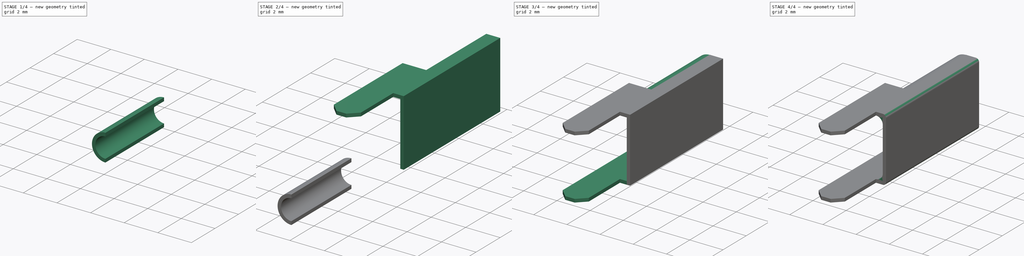
[diagram: build sequence overview — one tinted view per stage of 4, left to right]
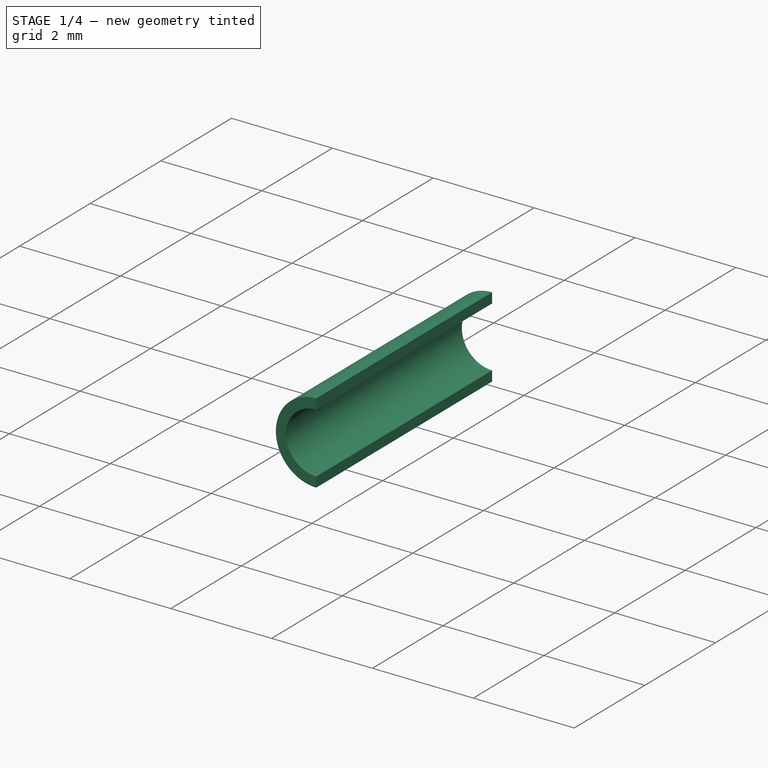
[diagram: stage 1 of 4 — iso view after this stage's code; geometry added in this stage tinted green]
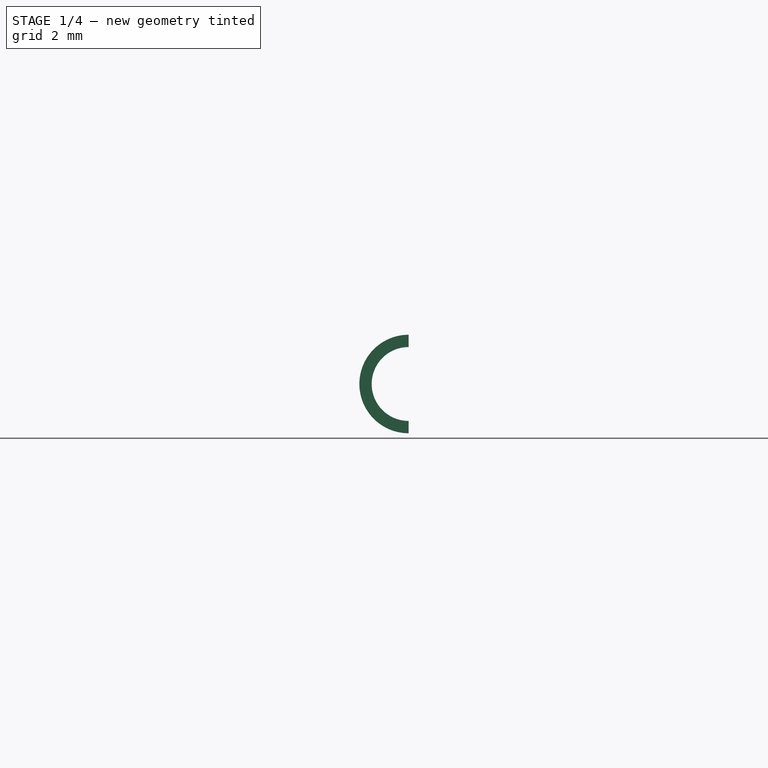
[diagram: stage 1 of 4 — front view after this stage's code; geometry added in this stage tinted green]
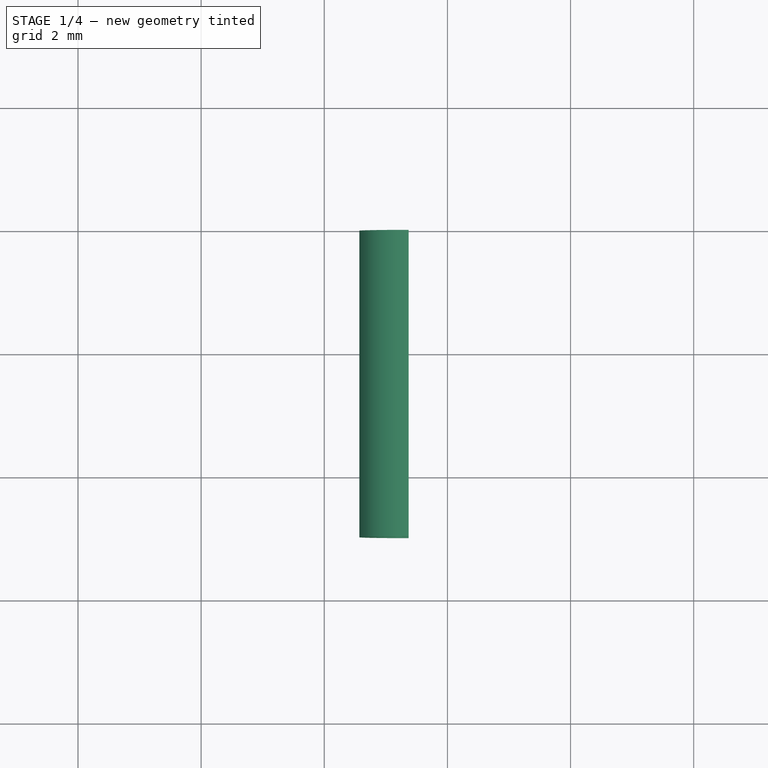
[diagram: stage 1 of 4 — top view after this stage's code; geometry added in this stage tinted green]
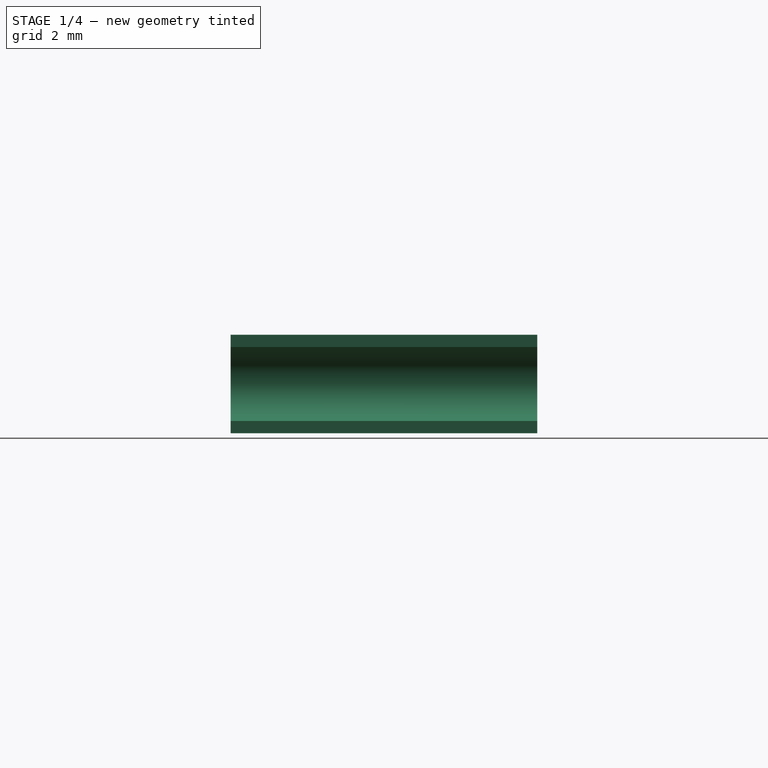
[diagram: stage 1 of 4 — right view after this stage's code; geometry added in this stage tinted green]
FCSTD DOCUMENT  (FreeCAD 0.17R12831 (Git))
Label: Spade
License: All rights reserved
LicenseURL: http://en.wikipedia.org/wiki/All_rights_reserved
objects: Sketcher::SketchObject×5, PartDesign::Pad×5, PartDesign::Body×4, PartDesign::Chamfer×2, PartDesign::Fillet×2, PartDesign::Boolean×1
note: 24 computed .brp shape members not serialized (recipe doc carries the construction recipe); baked Part::Feature solids carry a one-line shape summary decoded from their .brp

FEATURE [PartDesign::Body] Body001
  Group = -> [Sketch001,Pad001,Chamfer001,Sketch002,Pad002]
  Origin = -> Origin001
  Tip = -> Pad002
FEATURE [Sketcher::SketchObject] Sketch003
  MapMode = 5
  Placement = pos=(0,0,0) rot=(1,0,0;1.5708rad)
  Support = -> [XZ_Plane002]
  sketch-geometry (4):
    g0: LineSegment StartX=1.37 StartY=0.2 StartZ=0 EndX=1.37 EndY=0 EndZ=0
    g1: ArcOfCircle CenterX=1.37 CenterY=0.8 CenterZ=0 NormalX=0 NormalY=0 NormalZ=1 AngleXU=0 Radius=0.6 StartAngle=1.5708 EndAngle=4.71239
    g2: ArcOfCircle CenterX=1.37 CenterY=0.8 CenterZ=0 NormalX=0 NormalY=0 NormalZ=1 AngleXU=0 Radius=0.8 StartAngle=1.5708 EndAngle=4.71239
    g3: LineSegment StartX=1.37 StartY=1.6 StartZ=0 EndX=1.37 EndY=1.4 EndZ=0
  constraints (13):
    c: PointOnObject(g0,g-1)
    c: Vertical(g0)
    c: DistanceY(g0,g0) = 0.2
    c: Coincident(g1,g0)
    c: Coincident(g2,g1)
    c: Coincident(g2,g0)
    c: Coincident(g3,g2)
    c: Coincident(g3,g1)
    c: PointOnObject(g1,g3)
    c: PointOnObject(g0,g3)
    c: PointOnObject(g1,g0)
    c: DistanceX(g-1,g0) = 1.37
    c: Radius(g1) = 0.6
FEATURE [PartDesign::Pad] Pad003
  Length = 4.98
  Length2 = 100
  Placement = pos=(0,0,0) rot=(1,0,0;1.5708rad)
  Profile = -> Sketch003
  Type = 0
FEATURE [PartDesign::Body] Body002
  Group = -> [Sketch003,Pad003]
  Origin = -> Origin002
  Placement = pos=(0,11.18,0) rot=(0,0,1;0rad)
  Tip = -> Pad003
FEATURE [Sketcher::SketchObject] Sketch004
  MapMode = 5
  Placement = pos=(0,0,0) rot=(1,0,0;1.5708rad)
  Support = -> [XZ_Plane003]
  sketch-geometry (4):
    g0: LineSegment StartX=1.37 StartY=0.2 StartZ=0 EndX=1.37 EndY=0 EndZ=0
    g1: ArcOfCircle CenterX=1.37 CenterY=0.8 CenterZ=0 NormalX=0 NormalY=0 NormalZ=1 AngleXU=0 Radius=0.6 StartAngle=1.5708 EndAngle=4.71239
    g2: ArcOfCircle CenterX=1.37 CenterY=0.8 CenterZ=0 NormalX=0 NormalY=0 NormalZ=1 AngleXU=0 Radius=0.8 StartAngle=1.5708 EndAngle=4.71239
    g3: LineSegment StartX=1.37 StartY=1.6 StartZ=0 EndX=1.37 EndY=1.4 EndZ=0
  constraints (13):
    c: PointOnObject(g0,g-1)
    c: Vertical(g0)
    c: DistanceY(g0,g0) = 0.2
    c: Coincident(g1,g0)
    c: Coincident(g2,g1)
    c: Coincident(g2,g0)
    c: Coincident(g3,g2)
    c: Coincident(g3,g1)
    c: PointOnObject(g1,g3)
    c: PointOnObject(g0,g3)
    c: PointOnObject(g1,g0)
    c: DistanceX(g-1,g0) = 1.37
    c: Radius(g1) = 0.6
FEATURE [PartDesign::Pad] Pad004
  Length = 4.98
  Length2 = 100
  Placement = pos=(0,0,0) rot=(1,0,0;1.5708rad)
  Profile = -> Sketch004
  Type = 0
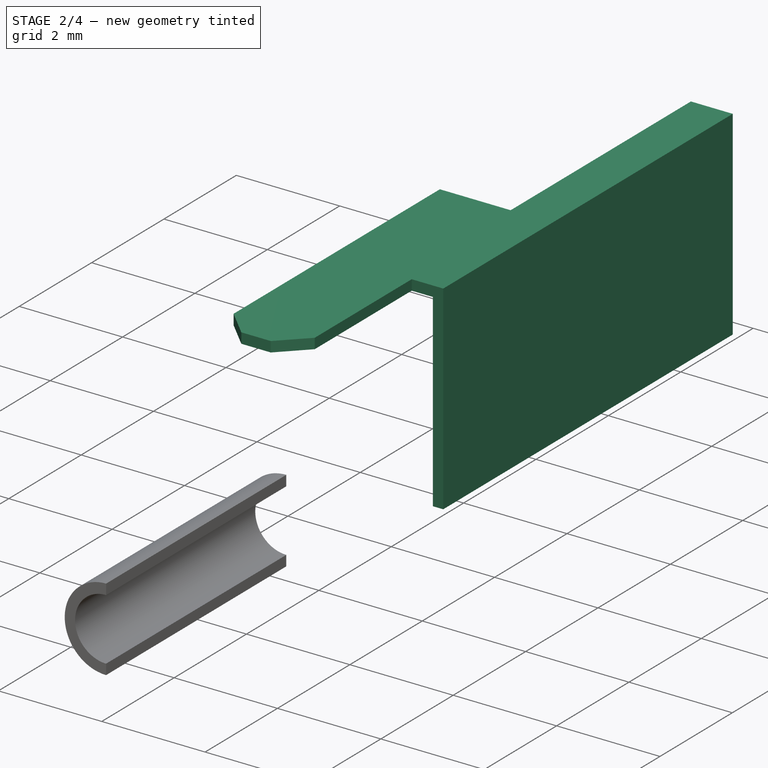
[diagram: stage 2 of 4 — iso view after this stage's code; geometry added in this stage tinted green]
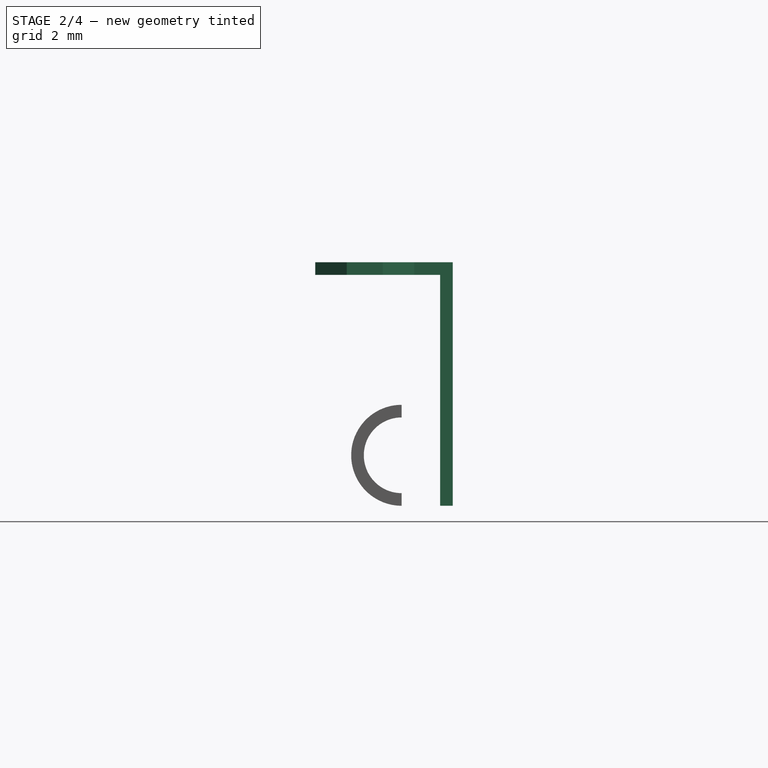
[diagram: stage 2 of 4 — front view after this stage's code; geometry added in this stage tinted green]
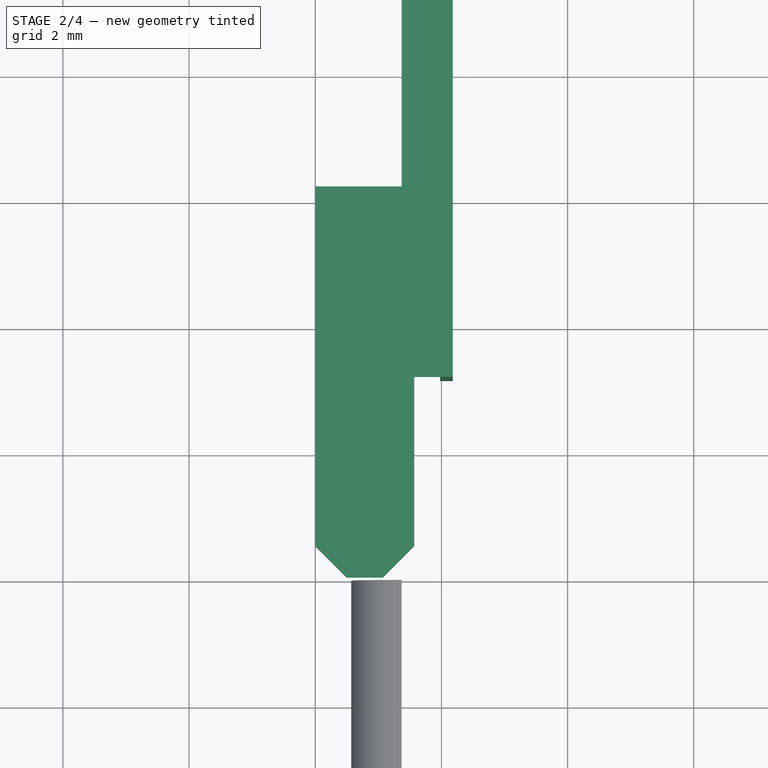
[diagram: stage 2 of 4 — top view after this stage's code; geometry added in this stage tinted green]
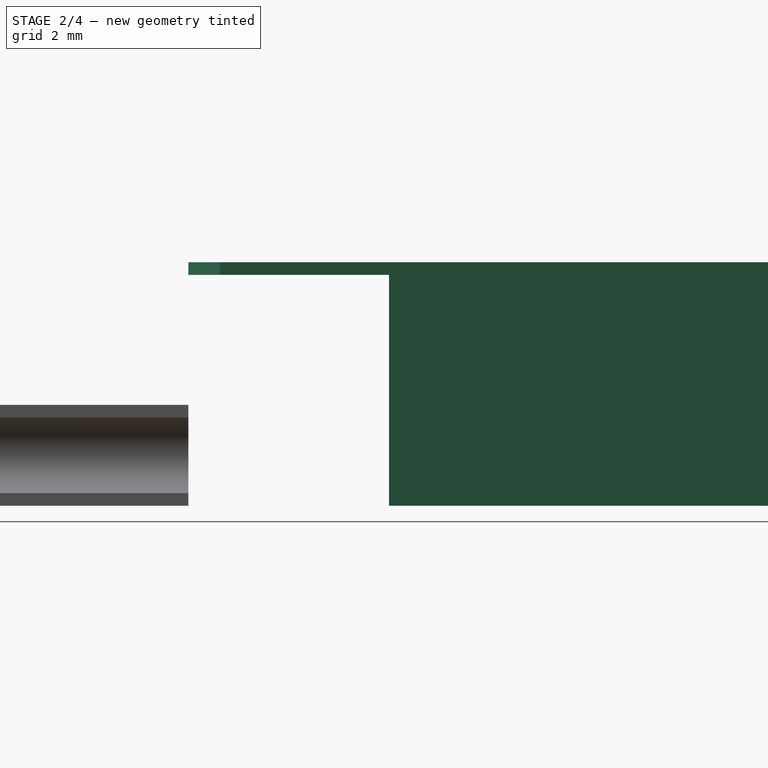
[diagram: stage 2 of 4 — right view after this stage's code; geometry added in this stage tinted green]
FEATURE [Sketcher::SketchObject] Sketch001
  AttachmentOffset = pos=(0,0,3.66) rot=(0,0,1;0rad)
  MapMode = 5
  Placement = pos=(0,0,3.66) rot=(0,0,1;0rad)
  Support = -> [XY_Plane001]
  sketch-geometry (8):
    g0: LineSegment StartX=0 StartY=0 StartZ=0 EndX=1.57 EndY=0 EndZ=0
    g1: LineSegment StartX=0 StartY=0 StartZ=0 EndX=0 EndY=6.2 EndZ=0
    g2: LineSegment StartX=0 StartY=6.2 StartZ=0 EndX=1.37 EndY=6.2 EndZ=0
    g3: LineSegment StartX=1.57 StartY=0 StartZ=0 EndX=1.57 EndY=3.18 EndZ=0
    g4: LineSegment StartX=1.57 StartY=3.18 StartZ=0 EndX=2.18 EndY=3.18 EndZ=0
    g5: LineSegment StartX=2.18 StartY=3.18 StartZ=0 EndX=2.18 EndY=11.18 EndZ=0
    g6: LineSegment StartX=2.18 StartY=11.18 StartZ=0 EndX=1.37 EndY=11.18 EndZ=0
    g7: LineSegment StartX=1.37 StartY=11.18 StartZ=0 EndX=1.37 EndY=6.2 EndZ=0
  constraints (23):
    c: Horizontal(g0)
    c: Coincident(g1,g0)
    c: Vertical(g1)
    c: Coincident(g2,g1)
    c: Horizontal(g2)
    c: Coincident(g3,g0)
    c: Vertical(g3)
    c: Coincident(g4,g3)
    c: Horizontal(g4)
    c: Coincident(g5,g4)
    c: Vertical(g5)
    c: Coincident(g6,g5)
    c: Horizontal(g6)
    c: Coincident(g7,g6)
    c: Coincident(g7,g2)
    c: Vertical(g7)
    c: DistanceX(g0,g0) = 1.57
    c: DistanceX(g0,g4) = 2.18
    c: DistanceX(g6,g6) = 0.81
    c: DistanceY(g0,g6) = 11.18
    c: DistanceY(g3,g3) = 3.18
    c: DistanceY(g7,g7) = 4.98
    c: Coincident(g0,g-1)
FEATURE [PartDesign::Pad] Pad001
  Length = 0.2
  Length2 = 100
  Profile = -> Sketch001
  Type = 0
FEATURE [PartDesign::Chamfer] Chamfer001
  Base = -> Pad001 [Edge2,Edge1]
  BaseFeature = -> Pad001
  Size = 0.5
FEATURE [Sketcher::SketchObject] Sketch002
  MapMode = 5
  Placement = pos=(2.18,0,0) rot=(0.57735,0.57735,0.57735;2.0944rad)
  Support = -> [Chamfer001]
  sketch-geometry (4):
    g0: LineSegment StartX=3.18 StartY=0 StartZ=0 EndX=11.18 EndY=0 EndZ=0
    g1: LineSegment StartX=11.18 StartY=0 StartZ=0 EndX=11.18 EndY=3.86 EndZ=0
    g2: LineSegment StartX=11.18 StartY=3.86 StartZ=0 EndX=3.18 EndY=3.86 EndZ=0
    g3: LineSegment StartX=3.18 StartY=3.86 StartZ=0 EndX=3.18 EndY=0 EndZ=0
  constraints (12):
    c: Coincident(g0,g1)
    c: Coincident(g1,g2)
    c: Coincident(g2,g3)
    c: Coincident(g3,g0)
    c: Horizontal(g0)
    c: Horizontal(g2)
    c: Vertical(g1)
    c: Vertical(g3)
    c: PointOnObject(g0,g-1)
    c: DistanceY(g3,g3) = 3.86
    c: DistanceX(g-1,g0) = 3.18
    c: DistanceX(g2,g2) = 8
FEATURE [PartDesign::Pad] Pad002
  BaseFeature = -> Chamfer001
  Length = 0.2
  Length2 = 100
  Profile = -> Sketch002
  Reversed = true
  Type = 0
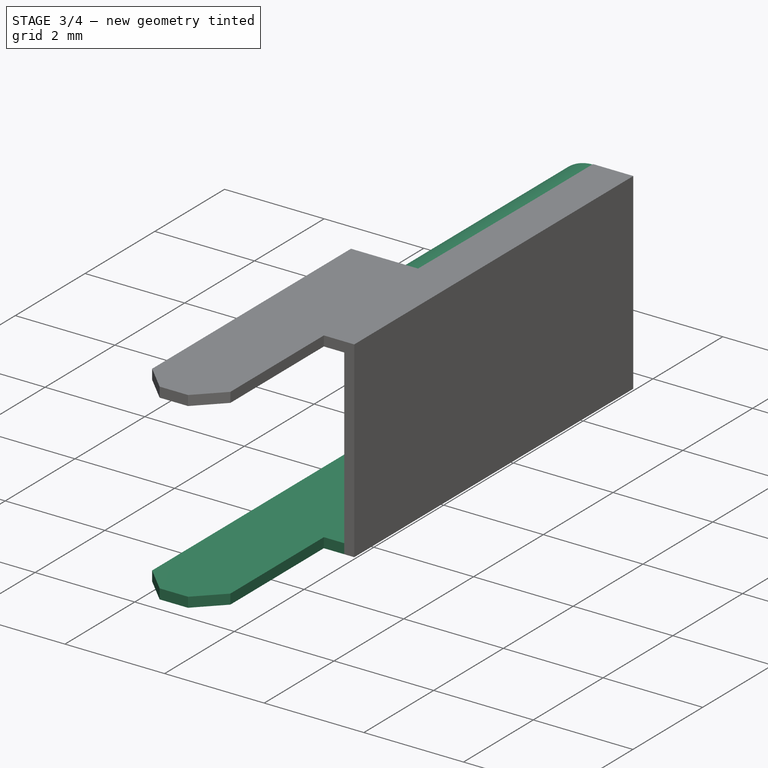
[diagram: stage 3 of 4 — iso view after this stage's code; geometry added in this stage tinted green]
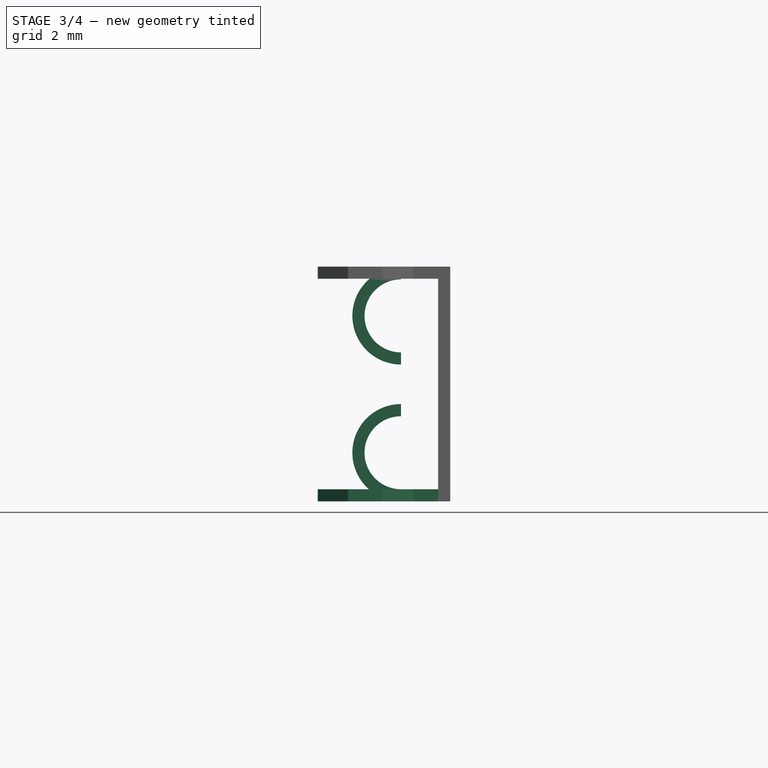
[diagram: stage 3 of 4 — front view after this stage's code; geometry added in this stage tinted green]
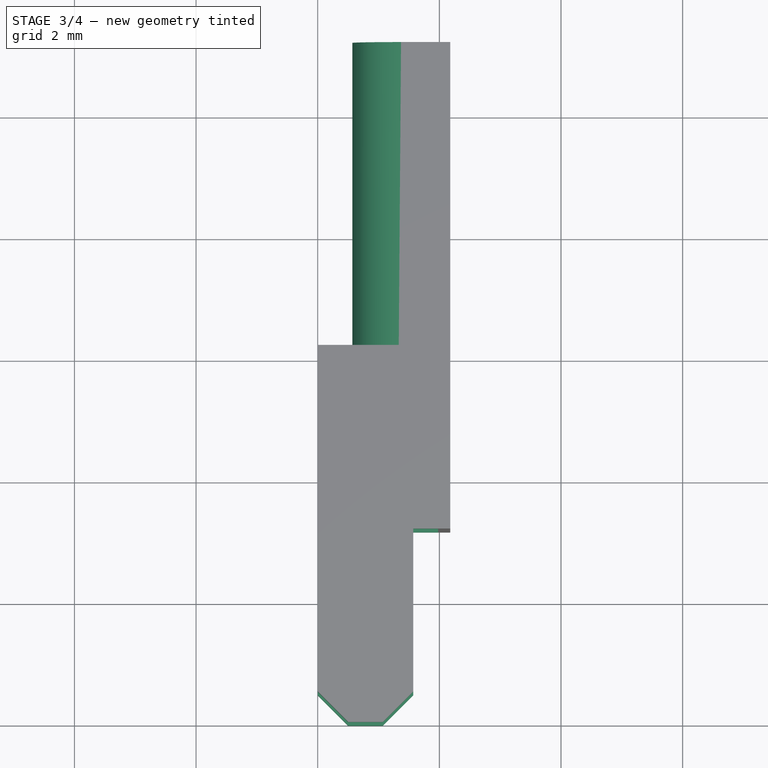
[diagram: stage 3 of 4 — top view after this stage's code; geometry added in this stage tinted green]
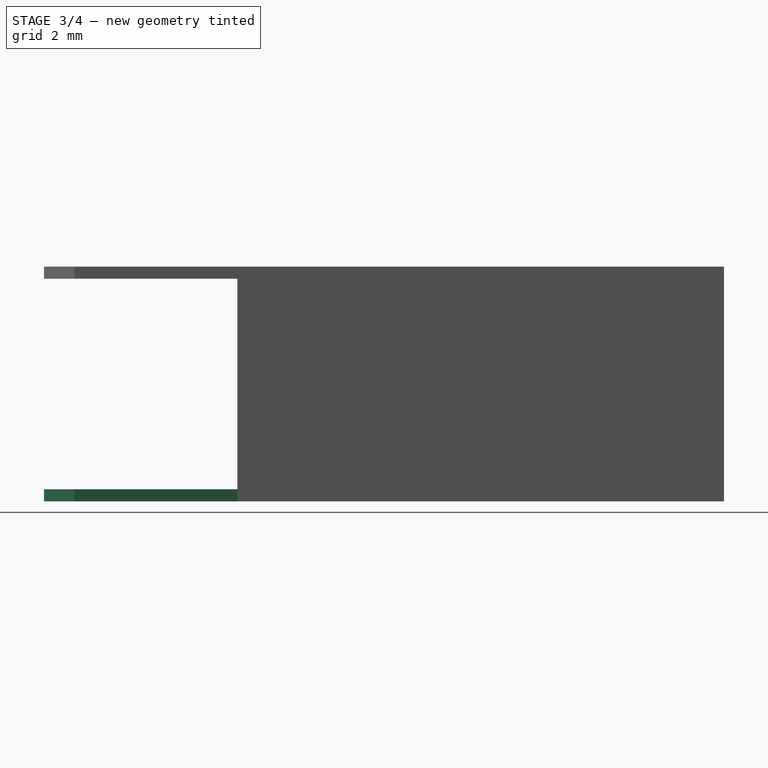
[diagram: stage 3 of 4 — right view after this stage's code; geometry added in this stage tinted green]
FEATURE [Sketcher::SketchObject] Sketch
  MapMode = 5
  Support = -> [XY_Plane]
  sketch-geometry (8):
    g0: LineSegment StartX=0 StartY=0 StartZ=0 EndX=1.57 EndY=0 EndZ=0
    g1: LineSegment StartX=0 StartY=0 StartZ=0 EndX=0 EndY=6.2 EndZ=0
    g2: LineSegment StartX=0 StartY=6.2 StartZ=0 EndX=1.37 EndY=6.2 EndZ=0
    g3: LineSegment StartX=1.57 StartY=0 StartZ=0 EndX=1.57 EndY=3.18 EndZ=0
    g4: LineSegment StartX=1.57 StartY=3.18 StartZ=0 EndX=2.18 EndY=3.18 EndZ=0
    g5: LineSegment StartX=2.18 StartY=3.18 StartZ=0 EndX=2.18 EndY=11.18 EndZ=0
    g6: LineSegment StartX=2.18 StartY=11.18 StartZ=0 EndX=1.37 EndY=11.18 EndZ=0
    g7: LineSegment StartX=1.37 StartY=11.18 StartZ=0 EndX=1.37 EndY=6.2 EndZ=0
  constraints (23):
    c: Horizontal(g0)
    c: Coincident(g1,g0)
    c: Vertical(g1)
    c: Coincident(g2,g1)
    c: Horizontal(g2)
    c: Coincident(g3,g0)
    c: Vertical(g3)
    c: Coincident(g4,g3)
    c: Horizontal(g4)
    c: Coincident(g5,g4)
    c: Vertical(g5)
    c: Coincident(g6,g5)
    c: Horizontal(g6)
    c: Coincident(g7,g6)
    c: Coincident(g7,g2)
    c: Vertical(g7)
    c: DistanceX(g0,g0) = 1.57
    c: DistanceX(g0,g4) = 2.18
    c: DistanceX(g6,g6) = 0.81
    c: DistanceY(g0,g6) = 11.18
    c: DistanceY(g3,g3) = 3.18
    c: DistanceY(g7,g7) = 4.98
    c: Coincident(g0,g-1)
FEATURE [PartDesign::Pad] Pad
  Length = 0.2
  Length2 = 100
  Profile = -> Sketch
  Type = 0
FEATURE [PartDesign::Chamfer] Chamfer
  Base = -> Pad [Edge2,Edge1]
  BaseFeature = -> Pad
  Size = 0.5
FEATURE [PartDesign::Body] Body003
  Group = -> [Sketch004,Pad004]
  Origin = -> Origin003
  Placement = pos=(0,11.18,2.25) rot=(0,0,1;0rad)
  Tip = -> Pad004
FEATURE [PartDesign::Boolean] Boolean
  BaseFeature = -> Chamfer
  Group = -> [Body001,Body003,Body002]
  Type = 0
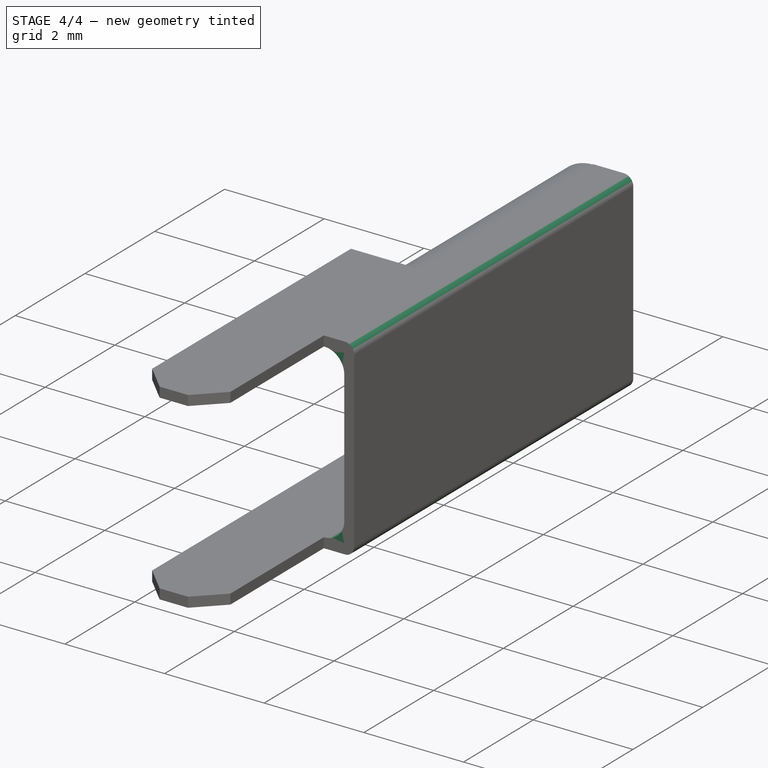
[diagram: stage 4 of 4 — iso view after this stage's code; geometry added in this stage tinted green]
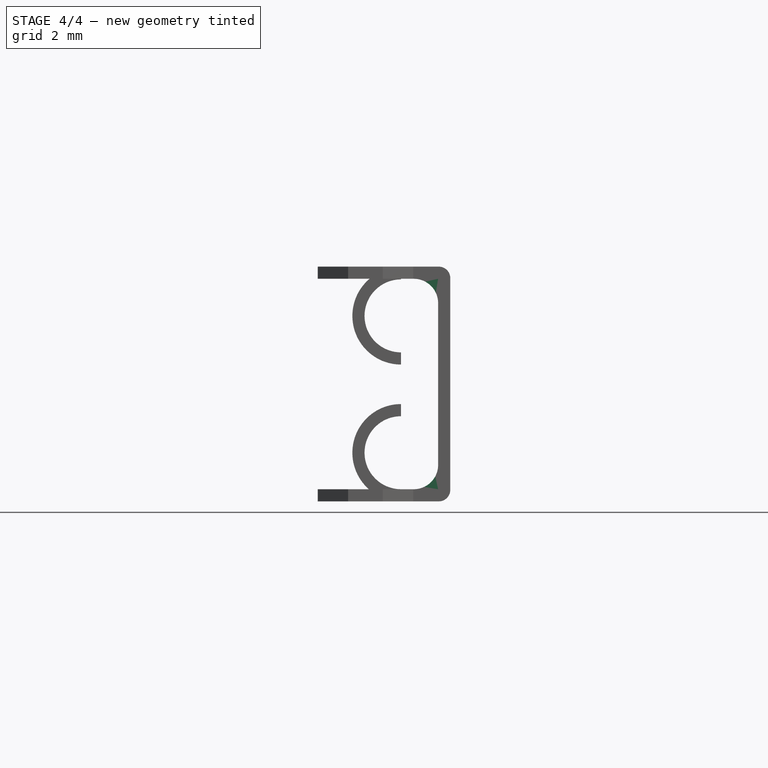
[diagram: stage 4 of 4 — front view after this stage's code; geometry added in this stage tinted green]
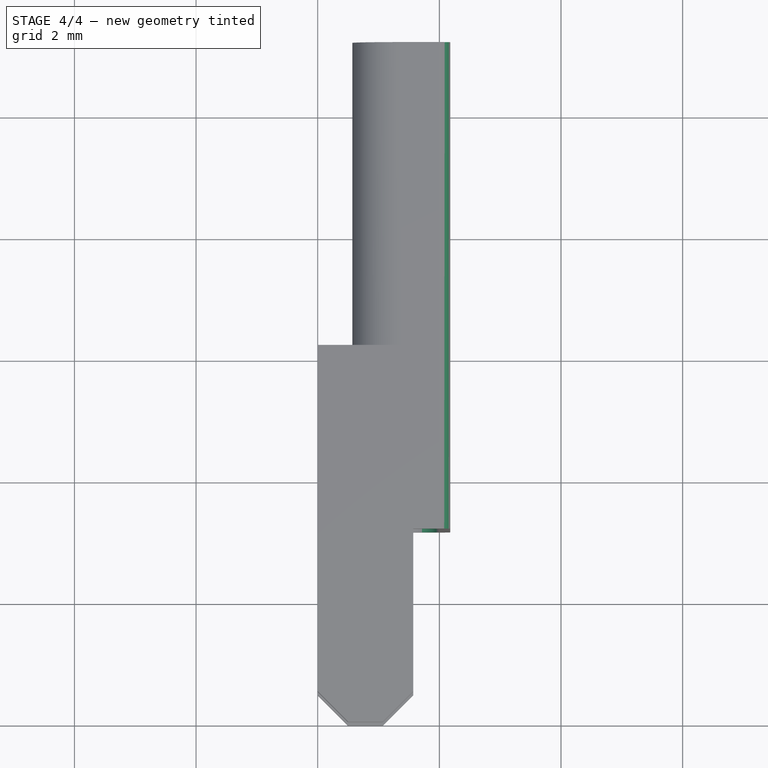
[diagram: stage 4 of 4 — top view after this stage's code; geometry added in this stage tinted green]
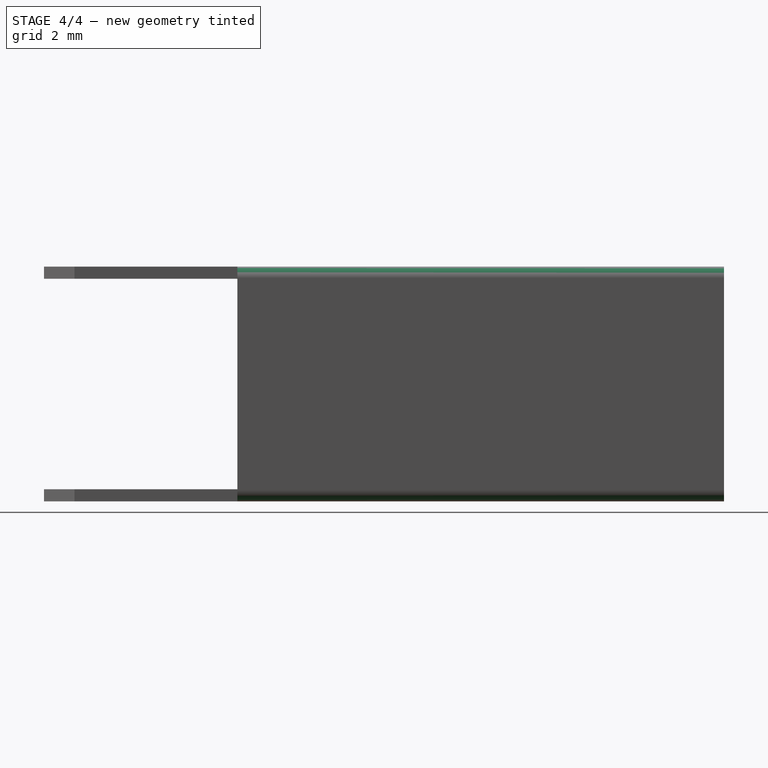
[diagram: stage 4 of 4 — right view after this stage's code; geometry added in this stage tinted green]
FEATURE [PartDesign::Fillet] Fillet
  Base = -> Boolean [Edge24,Edge42]
  BaseFeature = -> Boolean
  Radius = 0.4
FEATURE [PartDesign::Fillet] Fillet001
  Base = -> Fillet [Edge69,Edge96]
  BaseFeature = -> Fillet
  Radius = 0.19
FEATURE [PartDesign::Body] Body
  Group = -> [Sketch,Pad,Chamfer,Boolean,Fillet,Fillet001]
  Origin = -> Origin
  Tip = -> Fillet001
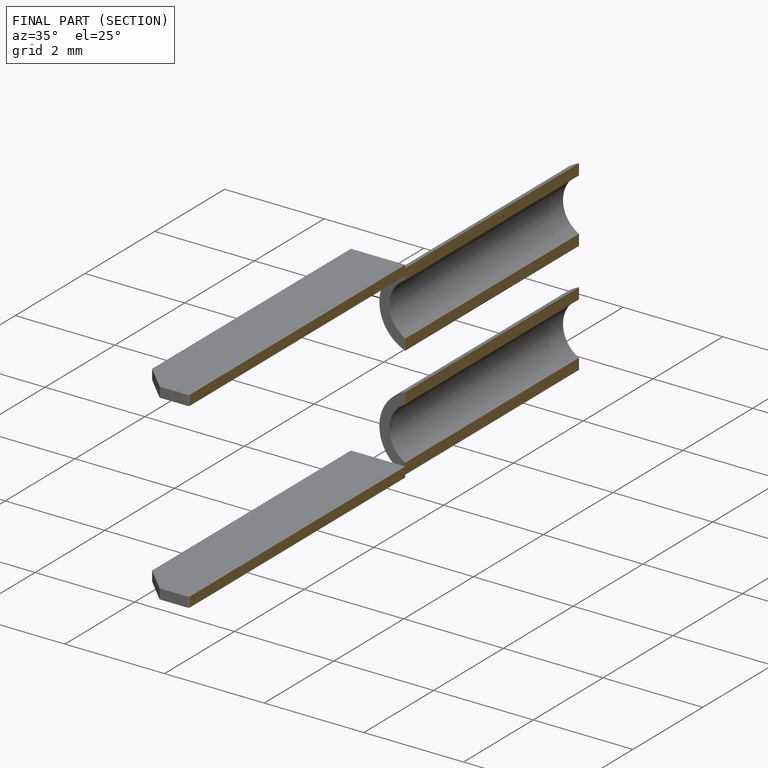
[diagram: finished part — half-section view (interior)]
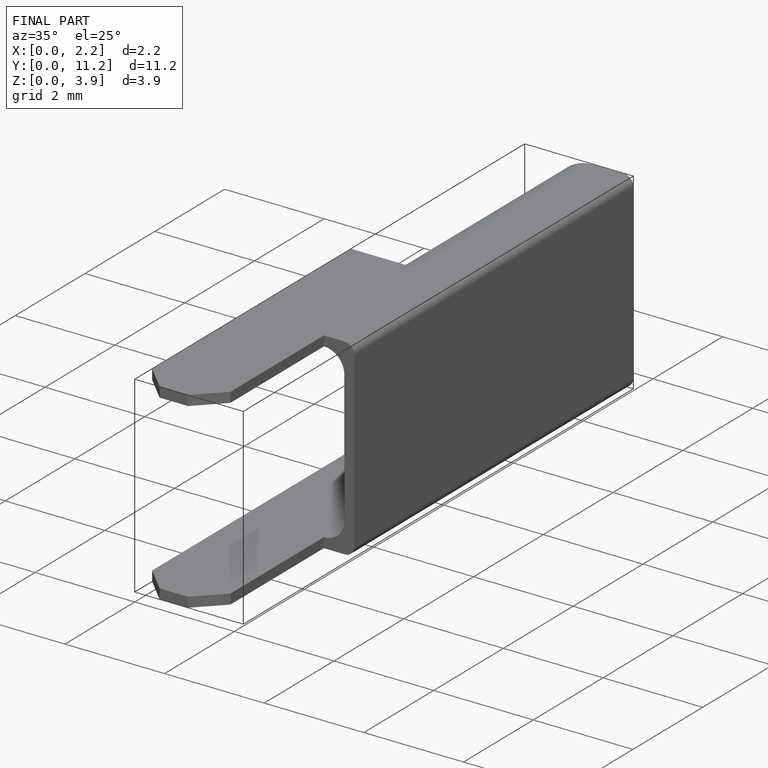
[diagram: finished part — iso view with bounding-box wireframe]
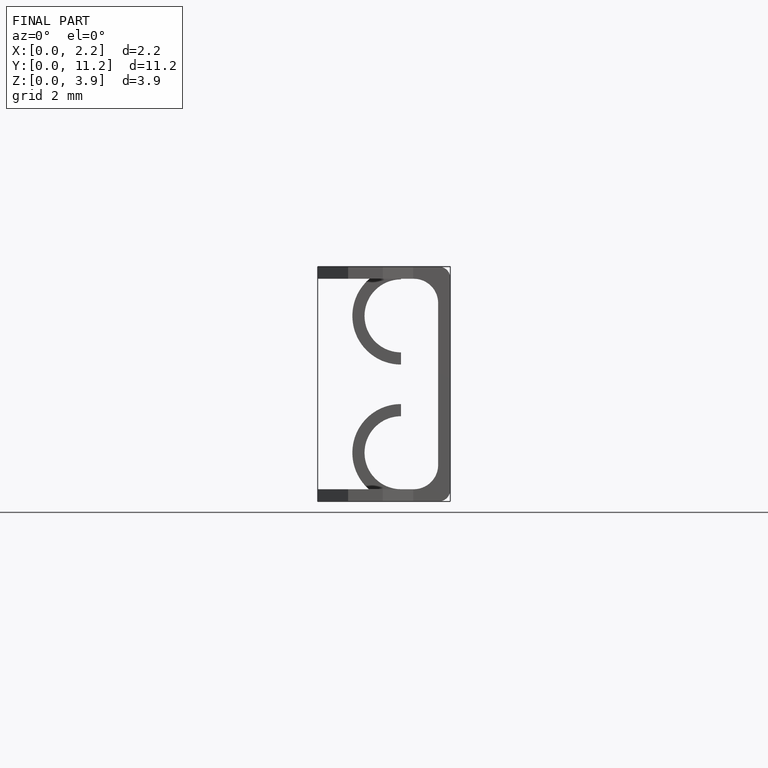
[diagram: finished part — front view with bounding-box wireframe]
